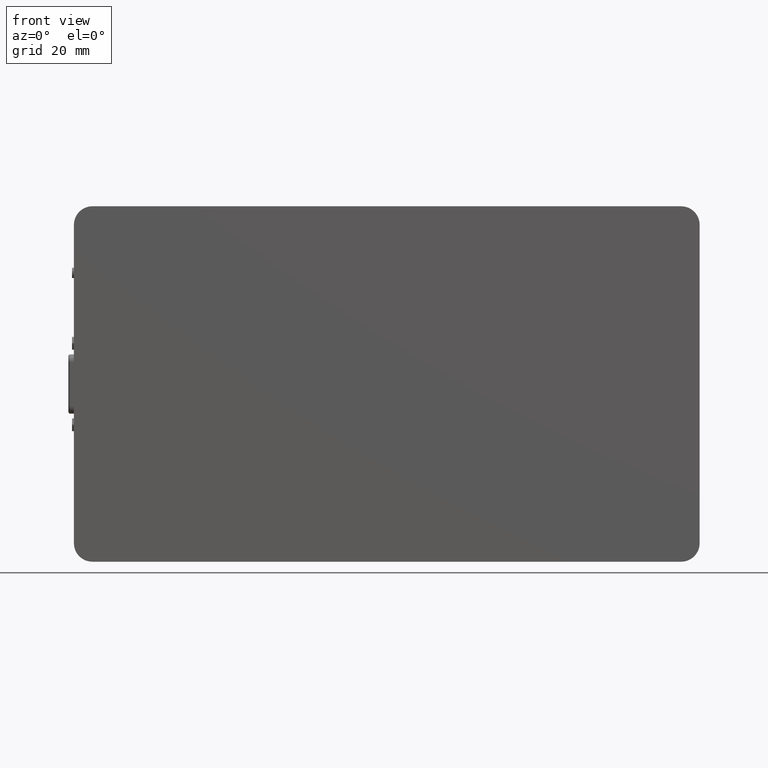
[diagram: clean part render]
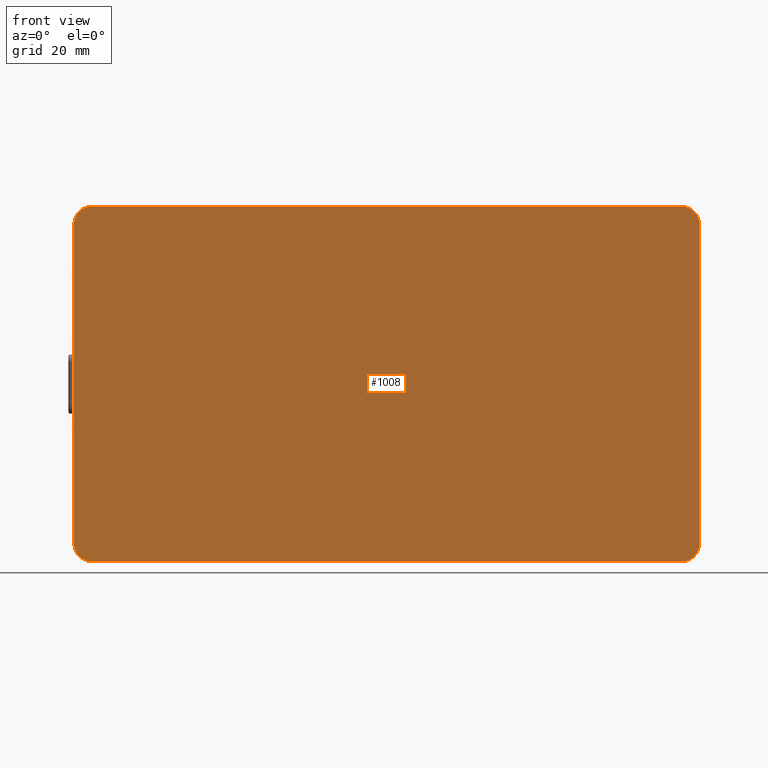
[diagram: same view with one face highlighted and labeled with its STEP entity id]
A machine part, front view. The second image highlights one B-rep face of the part: STEP entity #1008.
In plain terms, the highlighted planar face has unit normal (-0, 1, 0).
Its self-contained STEP definition (entity closure, byte-faithful):
#98 = VERTEX_POINT ( 'NONE', #1169 ) ;
#128 = EDGE_LOOP ( 'NONE', ( #2124, #3326, #5746, #2583, #7566, #6820, #4432, #2751, #8566, #7378, #650, #6163 ) ) ;
#167 = VECTOR ( 'NONE', #8668, 1000.000000000000000 ) ;
#204 = EDGE_CURVE ( 'NONE', #3375, #8382, #4882, .T. ) ;
#355 = VECTOR ( 'NONE', #5623, 1000.000000000000000 ) ;
#393 = DIRECTION ( 'NONE',  ( 0.7071067811865482389, 0.000000000000000000, -0.7071067811865467956 ) ) ;
#467 = CIRCLE ( 'NONE', #5595, 4.999999999999997335 ) ;
#469 = EDGE_CURVE ( 'NONE', #8971, #5558, #6338, .T. ) ;
#642 = AXIS2_PLACEMENT_3D ( 'NONE', #3367, #6160, #8931 ) ;
#645 = CARTESIAN_POINT ( 'NONE',  ( -79.50000000000000000, 0.000000000000000000, -43.00000000000000000 ) ) ;
#650 = ORIENTED_EDGE ( 'NONE', *, *, #5885, .T. ) ;
#707 = DIRECTION ( 'NONE',  ( 0.7071067811865482389, 0.000000000000000000, -0.7071067811865467956 ) ) ;
#766 = LINE ( 'NONE', #818, #5474 ) ;
#816 = AXIS2_PLACEMENT_3D ( 'NONE', #6376, #6512, #1603 ) ;
#818 = CARTESIAN_POINT ( 'NONE',  ( -84.50000000000000000, 0.000000000000000000, -48.00000000000000000 ) ) ;
#897 = VECTOR ( 'NONE', #1895, 1000.000000000000000 ) ;
#1008 = ADVANCED_FACE ( 'NONE', ( #4122 ), #1502, .F. ) ;
#1043 = EDGE_CURVE ( 'NONE', #2740, #98, #766, .T. ) ;
#1106 = CIRCLE ( 'NONE', #816, 5.000000000000001776 ) ;
#1169 = CARTESIAN_POINT ( 'NONE',  ( 79.50000000000000000, 0.000000000000000000, -48.00000000000000000 ) ) ;
#1308 = LINE ( 'NONE', #1490, #355 ) ;
#1437 = CARTESIAN_POINT ( 'NONE',  ( -79.50000000000000000, 0.000000000000000000, 48.00000000000000000 ) ) ;
#1490 = CARTESIAN_POINT ( 'NONE',  ( 84.50000000000000000, 0.000000000000000000, -48.00000000000000000 ) ) ;
#1502 = PLANE ( 'NONE',  #8232 ) ;
#1603 = DIRECTION ( 'NONE',  ( -0.7071067811865475727, 0.000000000000000000, -0.7071067811865475727 ) ) ;
#1750 = CARTESIAN_POINT ( 'NONE',  ( 79.50000000000000000, 0.000000000000000000, 48.00000000000000000 ) ) ;
#1839 = DIRECTION ( 'NONE',  ( -2.775557561562889810E-17, 1.000000000000000000, 2.775557561562889810E-17 ) ) ;
#1895 = DIRECTION ( 'NONE',  ( 0.000000000000000000, 0.000000000000000000, -1.000000000000000000 ) ) ;
#1896 = DIRECTION ( 'NONE',  ( -2.775557561562879950E-17, 1.000000000000000000, -2.775557561562889810E-17 ) ) ;
#1936 = CIRCLE ( 'NONE', #8366, 5.000000000000001776 ) ;
#2124 = ORIENTED_EDGE ( 'NONE', *, *, #204, .F. ) ;
#2145 = CARTESIAN_POINT ( 'NONE',  ( -84.50000000000000000, 0.000000000000000000, -43.00000000000000000 ) ) ;
#2218 = CIRCLE ( 'NONE', #2509, 4.999999999999997335 ) ;
#2509 = AXIS2_PLACEMENT_3D ( 'NONE', #7659, #4203, #707 ) ;
#2571 = EDGE_CURVE ( 'NONE', #7538, #2950, #1308, .T. ) ;
#2583 = ORIENTED_EDGE ( 'NONE', *, *, #3510, .F. ) ;
#2740 = VERTEX_POINT ( 'NONE', #8617 ) ;
#2751 = ORIENTED_EDGE ( 'NONE', *, *, #2571, .T. ) ;
#2780 = CARTESIAN_POINT ( 'NONE',  ( 79.50000000000000000, 0.000000000000000000, 43.00000000000000000 ) ) ;
#2950 = VERTEX_POINT ( 'NONE', #4015 ) ;
#2971 = CIRCLE ( 'NONE', #8950, 4.999999999999997335 ) ;
#3078 = CARTESIAN_POINT ( 'NONE',  ( -83.03553390593273775, 0.000000000000000000, -46.53553390593273775 ) ) ;
#3120 = VERTEX_POINT ( 'NONE', #1437 ) ;
#3257 = DIRECTION ( 'NONE',  ( -0.7071067811865475727, 0.000000000000000000, -0.7071067811865475727 ) ) ;
#3326 = ORIENTED_EDGE ( 'NONE', *, *, #5868, .T. ) ;
#3367 = CARTESIAN_POINT ( 'NONE',  ( -79.50000000000000000, 0.000000000000000000, 43.00000000000000000 ) ) ;
#3375 = VERTEX_POINT ( 'NONE', #4721 ) ;
#3510 = EDGE_CURVE ( 'NONE', #2740, #8971, #1106, .T. ) ;
#3681 = AXIS2_PLACEMENT_3D ( 'NONE', #8533, #5848, #4428 ) ;
#3838 = CARTESIAN_POINT ( 'NONE',  ( 83.03553390593273775, 0.000000000000000000, 46.53553390593273775 ) ) ;
#3888 = CARTESIAN_POINT ( 'NONE',  ( 79.50000000000000000, 0.000000000000000000, -43.00000000000000000 ) ) ;
#4015 = CARTESIAN_POINT ( 'NONE',  ( 84.50000000000000000, 0.000000000000000000, 43.00000000000000000 ) ) ;
#4116 = DIRECTION ( 'NONE',  ( 0.7071067811865475727, 0.000000000000000000, 0.7071067811865475727 ) ) ;
#4122 = FACE_OUTER_BOUND ( 'NONE', #128, .T. ) ;
#4203 = DIRECTION ( 'NONE',  ( -2.775557561562879950E-17, 1.000000000000000000, -2.775557561562889810E-17 ) ) ;
#4428 = DIRECTION ( 'NONE',  ( 0.7071067811865475727, 0.000000000000000000, 0.7071067811865475727 ) ) ;
#4432 = ORIENTED_EDGE ( 'NONE', *, *, #6019, .F. ) ;
#4500 = DIRECTION ( 'NONE',  ( -0.7071067811865454633, 0.000000000000000000, 0.7071067811865495711 ) ) ;
#4539 = DIRECTION ( 'NONE',  ( -2.775557561562899979E-17, 1.000000000000000000, -2.775557561562889810E-17 ) ) ;
#4550 = CIRCLE ( 'NONE', #3681, 5.000000000000001776 ) ;
#4556 = LINE ( 'NONE', #5255, #167 ) ;
#4721 = CARTESIAN_POINT ( 'NONE',  ( -84.50000000000000000, 0.000000000000000000, 43.00000000000000000 ) ) ;
#4882 = CIRCLE ( 'NONE', #642, 4.999999999999997335 ) ;
#5255 = CARTESIAN_POINT ( 'NONE',  ( 84.50000000000000000, 0.000000000000000000, 48.00000000000000000 ) ) ;
#5347 = CARTESIAN_POINT ( 'NONE',  ( -84.50000000000000000, 0.000000000000000000, 48.00000000000000000 ) ) ;
#5474 = VECTOR ( 'NONE', #6901, 1000.000000000000000 ) ;
#5558 = VERTEX_POINT ( 'NONE', #2145 ) ;
#5595 = AXIS2_PLACEMENT_3D ( 'NONE', #7240, #4539, #4500 ) ;
#5623 = DIRECTION ( 'NONE',  ( 0.000000000000000000, 0.000000000000000000, 1.000000000000000000 ) ) ;
#5701 = EDGE_CURVE ( 'NONE', #7523, #7033, #4550, .T. ) ;
#5746 = ORIENTED_EDGE ( 'NONE', *, *, #469, .F. ) ;
#5848 = DIRECTION ( 'NONE',  ( -2.775557561562889810E-17, 1.000000000000000000, 2.775557561562889810E-17 ) ) ;
#5868 = EDGE_CURVE ( 'NONE', #3375, #5558, #7342, .T. ) ;
#5885 = EDGE_CURVE ( 'NONE', #7523, #3120, #4556, .T. ) ;
#6019 = EDGE_CURVE ( 'NONE', #7538, #6278, #2218, .T. ) ;
#6160 = DIRECTION ( 'NONE',  ( -2.775557561562899979E-17, 1.000000000000000000, -2.775557561562889810E-17 ) ) ;
#6163 = ORIENTED_EDGE ( 'NONE', *, *, #6598, .F. ) ;
#6278 = VERTEX_POINT ( 'NONE', #8742 ) ;
#6297 = CARTESIAN_POINT ( 'NONE',  ( -83.03553390593272354, 2.166671187435641210E-31, 46.53553390593274486 ) ) ;
#6338 = CIRCLE ( 'NONE', #7068, 5.000000000000001776 ) ;
#6376 = CARTESIAN_POINT ( 'NONE',  ( -79.50000000000000000, 0.000000000000000000, -43.00000000000000000 ) ) ;
#6512 = DIRECTION ( 'NONE',  ( -2.775557561562889810E-17, 1.000000000000000000, 2.775557561562889810E-17 ) ) ;
#6598 = EDGE_CURVE ( 'NONE', #8382, #3120, #467, .T. ) ;
#6804 = EDGE_CURVE ( 'NONE', #7033, #2950, #1936, .T. ) ;
#6820 = ORIENTED_EDGE ( 'NONE', *, *, #7149, .F. ) ;
#6901 = DIRECTION ( 'NONE',  ( 1.000000000000000000, 0.000000000000000000, 2.102197443077219867E-16 ) ) ;
#7033 = VERTEX_POINT ( 'NONE', #3838 ) ;
#7068 = AXIS2_PLACEMENT_3D ( 'NONE', #645, #1839, #3257 ) ;
#7090 = DIRECTION ( 'NONE',  ( -5.551115123125779621E-17, 1.000000000000000000, 0.000000000000000000 ) ) ;
#7149 = EDGE_CURVE ( 'NONE', #6278, #98, #2971, .T. ) ;
#7240 = CARTESIAN_POINT ( 'NONE',  ( -79.50000000000000000, 0.000000000000000000, 43.00000000000000000 ) ) ;
#7342 = LINE ( 'NONE', #5347, #897 ) ;
#7378 = ORIENTED_EDGE ( 'NONE', *, *, #5701, .F. ) ;
#7523 = VERTEX_POINT ( 'NONE', #1750 ) ;
#7538 = VERTEX_POINT ( 'NONE', #8656 ) ;
#7566 = ORIENTED_EDGE ( 'NONE', *, *, #1043, .T. ) ;
#7627 = DIRECTION ( 'NONE',  ( 1.000000000000000000, 5.551115123125779621E-17, 0.000000000000000000 ) ) ;
#7659 = CARTESIAN_POINT ( 'NONE',  ( 79.50000000000000000, 0.000000000000000000, -43.00000000000000000 ) ) ;
#7674 = DIRECTION ( 'NONE',  ( -2.775557561562889810E-17, 1.000000000000000000, 2.775557561562889810E-17 ) ) ;
#7761 = CARTESIAN_POINT ( 'NONE',  ( -3.418649011675949652E-14, 0.000000000000000000, 7.239492024725549034E-15 ) ) ;
#8232 = AXIS2_PLACEMENT_3D ( 'NONE', #7761, #7090, #7627 ) ;
#8366 = AXIS2_PLACEMENT_3D ( 'NONE', #2780, #7674, #4116 ) ;
#8382 = VERTEX_POINT ( 'NONE', #6297 ) ;
#8533 = CARTESIAN_POINT ( 'NONE',  ( 79.50000000000000000, 0.000000000000000000, 43.00000000000000000 ) ) ;
#8566 = ORIENTED_EDGE ( 'NONE', *, *, #6804, .F. ) ;
#8617 = CARTESIAN_POINT ( 'NONE',  ( -79.50000000000000000, 0.000000000000000000, -48.00000000000000000 ) ) ;
#8656 = CARTESIAN_POINT ( 'NONE',  ( 84.50000000000000000, 0.000000000000000000, -43.00000000000000000 ) ) ;
#8668 = DIRECTION ( 'NONE',  ( -1.000000000000000000, 0.000000000000000000, 0.000000000000000000 ) ) ;
#8742 = CARTESIAN_POINT ( 'NONE',  ( 83.03553390593273775, -1.444447458290427547E-31, -46.53553390593273065 ) ) ;
#8931 = DIRECTION ( 'NONE',  ( -0.7071067811865454633, 0.000000000000000000, 0.7071067811865495711 ) ) ;
#8950 = AXIS2_PLACEMENT_3D ( 'NONE', #3888, #1896, #393 ) ;
#8971 = VERTEX_POINT ( 'NONE', #3078 ) ;